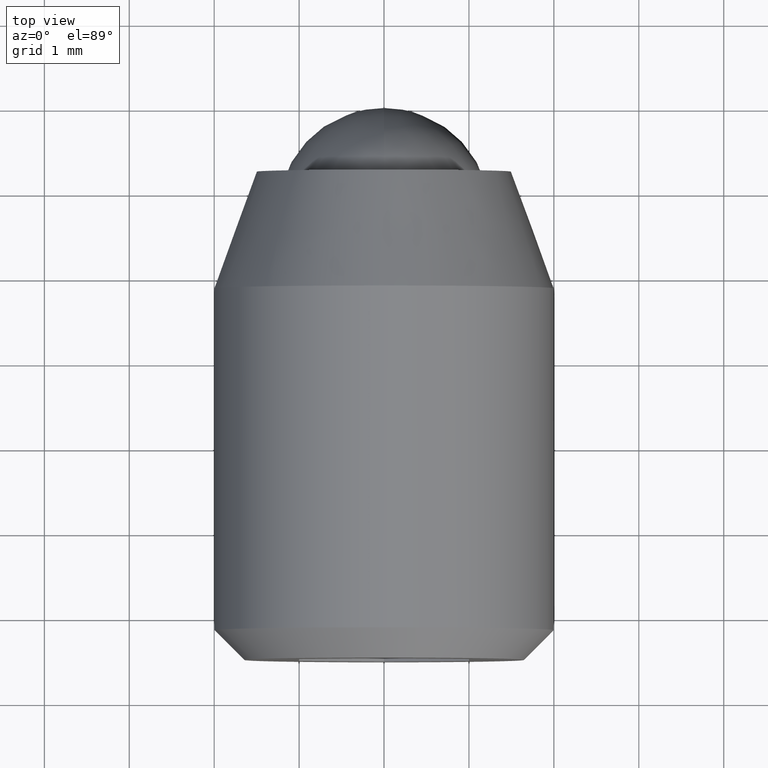
[diagram: clean part render]
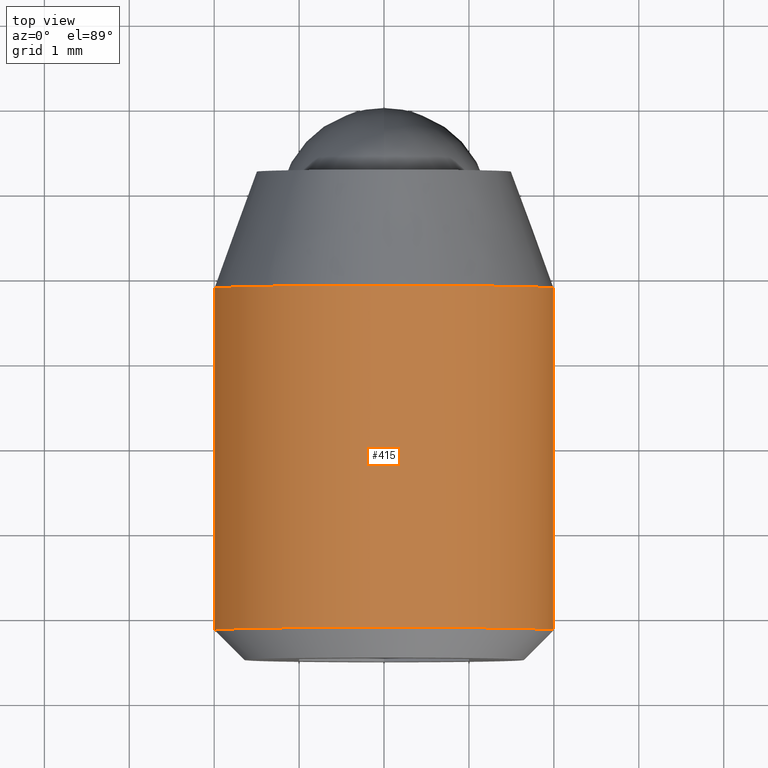
[diagram: same view with one face highlighted and labeled with its STEP entity id]
A machine part, top view. The second image highlights one B-rep face of the part: STEP entity #415.
In plain terms, the highlighted face is a freeform B-spline surface patch.
Its self-contained STEP definition (entity closure, byte-faithful):
#234=CARTESIAN_POINT('',(-0.468647227970026,-2.023082475000000,-1.944317303249655));
#235=CARTESIAN_POINT('',(-0.297656594332521,-2.023082474999999,-1.985531916897912));
#236=CARTESIAN_POINT('',(-0.122097079069714,-2.023082474999999,-1.996269596843734));
#237=CARTESIAN_POINT('',(1.874172517774020,-2.023082475000000,-2.118366675913449));
#238=CARTESIAN_POINT('',(1.996269596843733,-2.023082474999999,-0.122097079069714));
#239=CARTESIAN_POINT('',(2.118366675913447,-2.023082475000000,1.874172517774019));
#240=CARTESIAN_POINT('',(0.122097079069714,-2.023082474999999,1.996269596843733));
#241=CARTESIAN_POINT('',(-1.874172517774020,-2.023082475000000,2.118366675913447));
#242=CARTESIAN_POINT('',(-1.996269596843733,-2.023082474999999,0.122097079069714));
#243=CARTESIAN_POINT('',(-0.468647227970026,-6.253172938125003,-1.944317303249655));
#244=CARTESIAN_POINT('',(-0.297656594332521,-6.253172938125002,-1.985531916897912));
#245=CARTESIAN_POINT('',(-0.122097079069714,-6.253172938125003,-1.996269596843734));
#246=CARTESIAN_POINT('',(1.874172517774020,-6.253172938125003,-2.118366675913449));
#247=CARTESIAN_POINT('',(1.996269596843733,-6.253172938125003,-0.122097079069714));
#248=CARTESIAN_POINT('',(2.118366675913447,-6.253172938125003,1.874172517774019));
#249=CARTESIAN_POINT('',(0.122097079069714,-6.253172938125003,1.996269596843733));
#250=CARTESIAN_POINT('',(-1.874172517774020,-6.253172938125003,2.118366675913447));
#251=CARTESIAN_POINT('',(-1.996269596843733,-6.253172938125003,0.122097079069714));
#259=(BOUNDED_SURFACE()B_SPLINE_SURFACE(2,1,((#234,#243),(#235,#244),(#236,#245),(#237,#246),(#238,#247),(#239,#248),(#240,#249),(#241,#250),(#242,#251)),.UNSPECIFIED.,.F.,.F.,.U.)B_SPLINE_SURFACE_WITH_KNOTS((3,2,2,2,3),(2,2),(0.0,0.397645019878171,3.711353518862931,7.025062017847690,10.338770516832451),(0.0,4.230090463125004),.UNSPECIFIED.)GEOMETRIC_REPRESENTATION_ITEM()RATIONAL_B_SPLINE_SURFACE(((0.938140952186599,0.938140952186599),(0.964852813742386,0.964852813742386),(1.0,1.0),(0.707106781186548,0.707106781186548),(1.0,1.0),(0.707106781186548,0.707106781186548),(1.0,1.0),(0.707106781186548,0.707106781186548),(1.0,1.0)))REPRESENTATION_ITEM('')SURFACE());
#260=CARTESIAN_POINT('',(-0.468646445757333,-6.150000000000000,-1.944317491789438));
#261=VERTEX_POINT('',#260);
#262=CARTESIAN_POINT('',(0.0,-6.150000000000000,-2.0));
#263=VERTEX_POINT('',#262);
#264=CARTESIAN_POINT('',(-0.468646445757333,-6.150000000000000,-1.944317491789438));
#265=CARTESIAN_POINT('',(-0.237630790177895,-6.150000000000000,-2.000000000000001));
#266=CARTESIAN_POINT('',(0.0,-6.150000000000000,-2.0));
#274=(BOUNDED_CURVE()B_SPLINE_CURVE(2,(#264,#265,#266),.UNSPECIFIED.,.F.,.U.)B_SPLINE_CURVE_WITH_KNOTS((3,3),(0.959962840916567,1.0),.UNSPECIFIED.)CURVE()GEOMETRIC_REPRESENTATION_ITEM()RATIONAL_B_SPLINE_CURVE((0.921211108703644,0.953093550415628,1.0))REPRESENTATION_ITEM(''));
#275=EDGE_CURVE('',#261,#263,#274,.T.);
#276=ORIENTED_EDGE('',*,*,#275,.F.);
#277=CARTESIAN_POINT('',(-0.468646455401585,-2.123739000000001,-1.944317489464851));
#278=VERTEX_POINT('',#277);
#279=CARTESIAN_POINT('',(-0.468646455401585,-2.123739000000001,-1.944317489464851));
#280=CARTESIAN_POINT('',(-0.468646445757333,-6.150000000000000,-1.944317491789438));
#281=QUASI_UNIFORM_CURVE('',1,(#279,#280),.UNSPECIFIED.,.F.,.U.);
#282=EDGE_CURVE('',#278,#261,#281,.T.);
#283=ORIENTED_EDGE('',*,*,#282,.F.);
#284=CARTESIAN_POINT('',(0.0,-2.123739000000000,-2.0));
#285=VERTEX_POINT('',#284);
#286=CARTESIAN_POINT('',(-0.468646455401585,-2.123739000000001,-1.944317489464851));
#287=CARTESIAN_POINT('',(-0.237630800238393,-2.123739000000000,-2.000000000000000));
#288=CARTESIAN_POINT('',(0.0,-2.123739000000000,-2.0));
#296=(BOUNDED_CURVE()B_SPLINE_CURVE(2,(#286,#287,#288),.UNSPECIFIED.,.F.,.U.)B_SPLINE_CURVE_WITH_KNOTS((3,3),(0.959962839301035,1.0),.UNSPECIFIED.)CURVE()GEOMETRIC_REPRESENTATION_ITEM()RATIONAL_B_SPLINE_CURVE((0.921211106130680,0.953093548522915,1.0))REPRESENTATION_ITEM(''));
#297=EDGE_CURVE('',#278,#285,#296,.T.);
#298=ORIENTED_EDGE('',*,*,#297,.T.);
#299=CARTESIAN_POINT('',(1.986018947549469,-2.123738550367196,-0.236067967675831));
#300=VERTEX_POINT('',#299);
#301=CARTESIAN_POINT('',(0.0,-2.123739000000000,-2.0));
#302=CARTESIAN_POINT('',(1.776349920778663,-2.123739000000000,-2.000000000000000));
#303=CARTESIAN_POINT('',(1.986018947549469,-2.123738550367196,-0.236067967675831));
#311=(BOUNDED_CURVE()B_SPLINE_CURVE(2,(#301,#302,#303),.UNSPECIFIED.,.F.,.U.)B_SPLINE_CURVE_WITH_KNOTS((3,3),(0.0,0.229562555603303),.UNSPECIFIED.)CURVE()GEOMETRIC_REPRESENTATION_ITEM()RATIONAL_B_SPLINE_CURVE((1.0,0.731050736681225,0.956026915083120))REPRESENTATION_ITEM(''));
#312=EDGE_CURVE('',#285,#300,#311,.T.);
#313=ORIENTED_EDGE('',*,*,#312,.T.);
#314=CARTESIAN_POINT('',(0.0,-2.123739000000000,2.0));
#315=VERTEX_POINT('',#314);
#316=CARTESIAN_POINT('',(1.986018947549469,-2.123738550367196,-0.236067967675831));
#317=CARTESIAN_POINT('',(2.000000000000000,-2.123739000000000,-0.118447751883767));
#318=CARTESIAN_POINT('',(2.0,-2.123739000000000,-4.439198E-016));
#319=CARTESIAN_POINT('',(2.000000000000000,-2.123739000000000,2.000000000000000));
#320=CARTESIAN_POINT('',(0.0,-2.123739000000000,2.0));
#328=(BOUNDED_CURVE()B_SPLINE_CURVE(2,(#316,#317,#318,#319,#320),.UNSPECIFIED.,.F.,.U.)B_SPLINE_CURVE_WITH_KNOTS((3,2,3),(0.229562555603303,0.250000000000000,0.500000000000000),.UNSPECIFIED.)CURVE()GEOMETRIC_REPRESENTATION_ITEM()RATIONAL_B_SPLINE_CURVE((0.956026915083120,0.976056044505322,1.0,0.707106781186548,1.0))REPRESENTATION_ITEM(''));
#329=EDGE_CURVE('',#300,#315,#328,.T.);
#330=ORIENTED_EDGE('',*,*,#329,.T.);
#331=CARTESIAN_POINT('',(-1.996269361620150,-2.123737383784706,0.122096106656471));
#332=VERTEX_POINT('',#331);
#333=CARTESIAN_POINT('',(0.0,-2.123739000000000,2.0));
#334=CARTESIAN_POINT('',(-1.881412888232733,-2.123738191892353,1.999999991021386));
#335=CARTESIAN_POINT('',(-1.996269361620151,-2.123737383784706,0.122096106656471));
#343=(BOUNDED_CURVE()B_SPLINE_CURVE(2,(#333,#334,#335),.UNSPECIFIED.,.F.,.U.)B_SPLINE_CURVE_WITH_KNOTS((3,3),(0.500000000000000,0.739333044740011),.UNSPECIFIED.)CURVE()GEOMETRIC_REPRESENTATION_ITEM()RATIONAL_B_SPLINE_CURVE((1.0,0.719603896630697,0.976072218482274))REPRESENTATION_ITEM(''));
#344=EDGE_CURVE('',#315,#332,#343,.T.);
#345=ORIENTED_EDGE('',*,*,#344,.T.);
#346=CARTESIAN_POINT('',(-1.996269606912893,-6.150000000000000,0.122096914440200));
#347=VERTEX_POINT('',#346);
#348=CARTESIAN_POINT('',(-1.996269361620150,-2.123737383784706,0.122096106656471));
#349=CARTESIAN_POINT('',(-1.996269606912893,-6.150000000000000,0.122096914440200));
#350=QUASI_UNIFORM_CURVE('',1,(#348,#349),.UNSPECIFIED.,.F.,.U.);
#351=EDGE_CURVE('',#332,#347,#350,.T.);
#352=ORIENTED_EDGE('',*,*,#351,.T.);
#353=CARTESIAN_POINT('',(-1.993834667755136,-6.149999999649104,0.156918192257462));
#354=VERTEX_POINT('',#353);
#355=CARTESIAN_POINT('',(-1.993834667755136,-6.149999999649105,0.156918192257462));
#356=CARTESIAN_POINT('',(-1.995204084671445,-6.150000000000000,0.139518096250091));
#357=CARTESIAN_POINT('',(-1.996269606912892,-6.150000000000000,0.122096914440200));
#365=(BOUNDED_CURVE()B_SPLINE_CURVE(2,(#355,#356,#357),.UNSPECIFIED.,.F.,.U.)B_SPLINE_CURVE_WITH_KNOTS((3,3),(0.736331300499633,0.739332990701346),.UNSPECIFIED.)CURVE()GEOMETRIC_REPRESENTATION_ITEM()RATIONAL_B_SPLINE_CURVE((0.969723355893974,0.972855505118960,0.976072102667074))REPRESENTATION_ITEM(''));
#366=EDGE_CURVE('',#354,#347,#365,.T.);
#367=ORIENTED_EDGE('',*,*,#366,.F.);
#368=CARTESIAN_POINT('',(0.0,-6.150000000000000,2.0));
#369=VERTEX_POINT('',#368);
#370=CARTESIAN_POINT('',(0.0,-6.150000000000000,2.0));
#371=CARTESIAN_POINT('',(-1.848780981876145,-6.150000000000001,2.000000000000000));
#372=CARTESIAN_POINT('',(-1.993834667755136,-6.149999999649105,0.156918192257462));
#380=(BOUNDED_CURVE()B_SPLINE_CURVE(2,(#370,#371,#372),.UNSPECIFIED.,.F.,.U.)B_SPLINE_CURVE_WITH_KNOTS((3,3),(0.500000000000000,0.736331300499633),.UNSPECIFIED.)CURVE()GEOMETRIC_REPRESENTATION_ITEM()RATIONAL_B_SPLINE_CURVE((1.0,0.723120658761173,0.969723355893974))REPRESENTATION_ITEM(''));
#381=EDGE_CURVE('',#369,#354,#380,.T.);
#382=ORIENTED_EDGE('',*,*,#381,.F.);
#383=CARTESIAN_POINT('',(1.993834667755136,-6.149999999649104,-0.156918192257463));
#384=VERTEX_POINT('',#383);
#385=CARTESIAN_POINT('',(1.993834667755136,-6.149999999649105,-0.156918192257463));
#386=CARTESIAN_POINT('',(2.000000000000000,-6.150000000000000,-0.078580214793174));
#387=CARTESIAN_POINT('',(2.0,-6.150000000000000,-4.439198E-016));
#388=CARTESIAN_POINT('',(2.000000000000000,-6.150000000000002,2.000000000000000));
#389=CARTESIAN_POINT('',(0.0,-6.150000000000000,2.0));
#397=(BOUNDED_CURVE()B_SPLINE_CURVE(2,(#385,#386,#387,#388,#389),.UNSPECIFIED.,.F.,.U.)B_SPLINE_CURVE_WITH_KNOTS((3,2,3),(0.236331300499633,0.250000000000000,0.500000000000000),.UNSPECIFIED.)CURVE()GEOMETRIC_REPRESENTATION_ITEM()RATIONAL_B_SPLINE_CURVE((0.969723355893974,0.983986122425374,1.0,0.707106781186548,1.0))REPRESENTATION_ITEM(''));
#398=EDGE_CURVE('',#384,#369,#397,.T.);
#399=ORIENTED_EDGE('',*,*,#398,.F.);
#400=CARTESIAN_POINT('',(0.0,-6.150000000000000,-2.0));
#401=CARTESIAN_POINT('',(1.848780981876145,-6.150000000000001,-2.000000000000000));
#402=CARTESIAN_POINT('',(1.993834667755136,-6.149999999649105,-0.156918192257463));
#410=(BOUNDED_CURVE()B_SPLINE_CURVE(2,(#400,#401,#402),.UNSPECIFIED.,.F.,.U.)B_SPLINE_CURVE_WITH_KNOTS((3,3),(0.0,0.236331300499633),.UNSPECIFIED.)CURVE()GEOMETRIC_REPRESENTATION_ITEM()RATIONAL_B_SPLINE_CURVE((1.0,0.723120658761173,0.969723355893974))REPRESENTATION_ITEM(''));
#411=EDGE_CURVE('',#263,#384,#410,.T.);
#412=ORIENTED_EDGE('',*,*,#411,.F.);
#413=EDGE_LOOP('',(#276,#283,#298,#313,#330,#345,#352,#367,#382,#399,#412));
#414=FACE_OUTER_BOUND('',#413,.T.);
#415=ADVANCED_FACE('',(#414),#259,.T.);